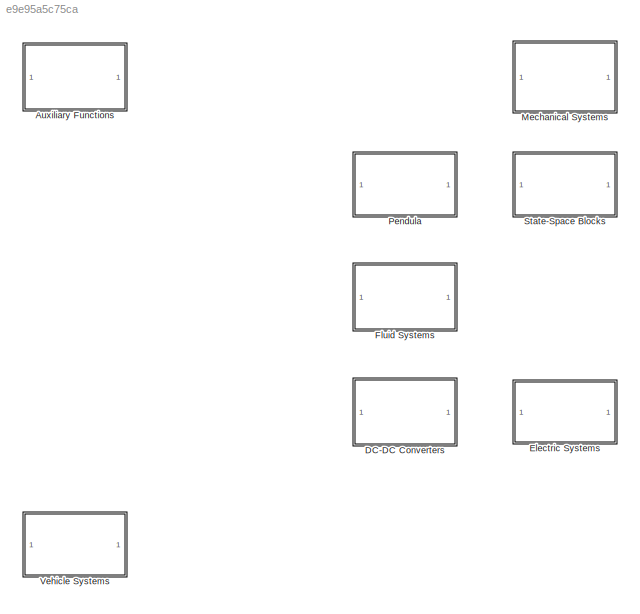
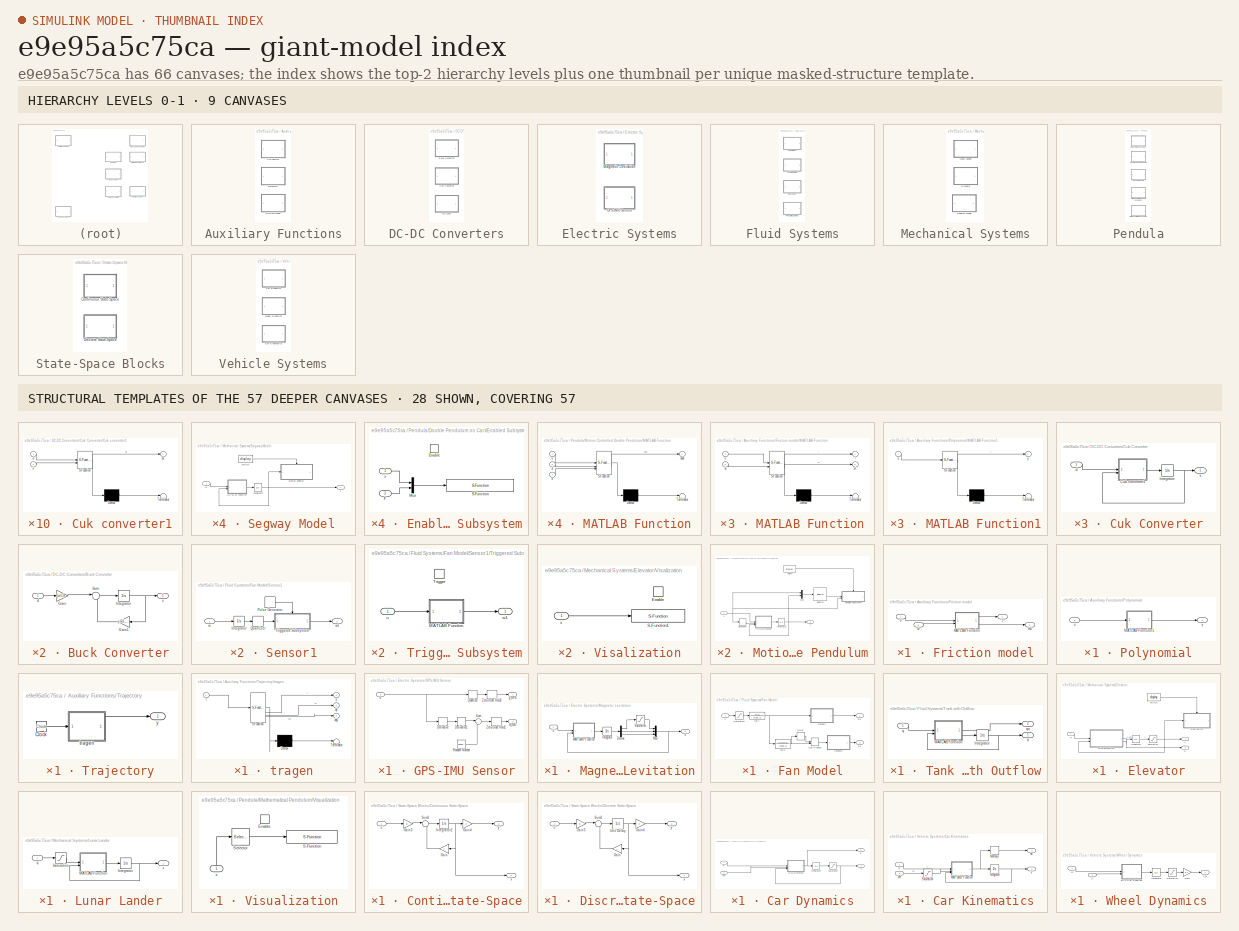
[diagram: thumbnail index - top-2 hierarchy levels (9 canvases) + 28 structural-template representatives of the remaining 57 canvases]
MODEL slx_e9e95a5c75ca
KIND library
CONFIG AbsTol = auto
CONFIG EnableMultiTasking = off
CONFIG FixedStep = auto
CONFIG MaxStep = auto
CONFIG MinStep = auto
CONFIG RelTol = 1e-3
CONFIG SampleTimeConstraint = Unconstrained
CONFIG SolverName = VariableStepAuto
CONFIG StartTime = 0.0
CONFIG StopTime = 10.0
BLOCK [SubSystem] Auxiliary Functions
BLOCK [SubSystem] Auxiliary Functions/Friction model
  LibrarySourceBlock = mci_models/Engine
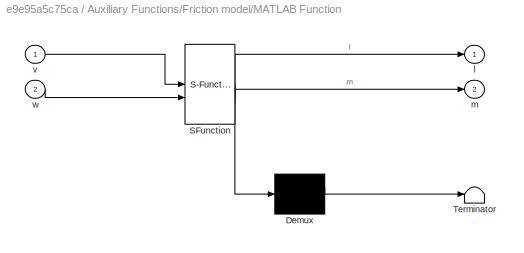
BLOCK [SubSystem] Auxiliary Functions/Friction model/MATLAB Function
  ErrorFcn = Stateflow.Translate.translate
  PermitHierarchicalResolution = ExplicitOnly
  SFBlockType = MATLAB Function
  TreatAsAtomicUnit = on
BLOCK [Demux] Auxiliary Functions/Friction model/MATLAB Function/ Demux 
  Outputs = 1
BLOCK [S-Function] Auxiliary Functions/Friction model/MATLAB Function/ SFunction 
  EnableBusSupport = off
  FunctionName = sf_sfun
  Parameters = p
  PortCounts = [2 3]
  SFcnIsStateOwnerBlock = off
  SFunctionDeploymentMode = off
  Tag = Stateflow S-Function 17
BLOCK [Terminator] Auxiliary Functions/Friction model/MATLAB Function/ Terminator 
BLOCK [Outport] Auxiliary Functions/Friction model/MATLAB Function/l
  VectorParamsAs1DForOutWhenUnconnected = off
BLOCK [Outport] Auxiliary Functions/Friction model/MATLAB Function/m
  Port = 2
  VectorParamsAs1DForOutWhenUnconnected = off
BLOCK [Inport] Auxiliary Functions/Friction model/MATLAB Function/v
BLOCK [Inport] Auxiliary Functions/Friction model/MATLAB Function/w
  Port = 2
BLOCK [Outport] Auxiliary Functions/Friction model/l
  VectorParamsAs1DForOutWhenUnconnected = off
BLOCK [Outport] Auxiliary Functions/Friction model/mu
  Port = 2
  VectorParamsAs1DForOutWhenUnconnected = off
BLOCK [Inport] Auxiliary Functions/Friction model/v
BLOCK [Inport] Auxiliary Functions/Friction model/w
  Port = 2
BLOCK [SubSystem] Auxiliary Functions/Polynomial
BLOCK [SubSystem] Auxiliary Functions/Polynomial/MATLAB Function1
  ErrorFcn = Stateflow.Translate.translate
  PermitHierarchicalResolution = ExplicitOnly
  SFBlockType = MATLAB Function
  TreatAsAtomicUnit = on
BLOCK [Demux] Auxiliary Functions/Polynomial/MATLAB Function1/ Demux 
  Outputs = 1
BLOCK [S-Function] Auxiliary Functions/Polynomial/MATLAB Function1/ SFunction 
  EnableBusSupport = off
  FunctionName = sf_sfun
  Parameters = p
  PortCounts = [1 2]
  SFcnIsStateOwnerBlock = off
  SFunctionDeploymentMode = off
  Tag = Stateflow S-Function 6
BLOCK [Terminator] Auxiliary Functions/Polynomial/MATLAB Function1/ Terminator 
BLOCK [Inport] Auxiliary Functions/Polynomial/MATLAB Function1/u
BLOCK [Outport] Auxiliary Functions/Polynomial/MATLAB Function1/y
  VectorParamsAs1DForOutWhenUnconnected = off
BLOCK [Inport] Auxiliary Functions/Polynomial/u
BLOCK [Outport] Auxiliary Functions/Polynomial/y
  VectorParamsAs1DForOutWhenUnconnected = off
BLOCK [SubSystem] Auxiliary Functions/Trajectory
  LibrarySourceBlock = mci_models/Polynomial
BLOCK [Clock] Auxiliary Functions/Trajectory/Clock
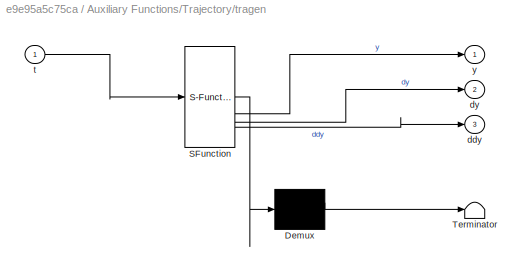
BLOCK [SubSystem] Auxiliary Functions/Trajectory/tragen
  ErrorFcn = Stateflow.Translate.translate
  PermitHierarchicalResolution = ExplicitOnly
  SFBlockType = MATLAB Function
  TreatAsAtomicUnit = on
BLOCK [Demux] Auxiliary Functions/Trajectory/tragen/ Demux 
  Outputs = 1
BLOCK [S-Function] Auxiliary Functions/Trajectory/tragen/ SFunction 
  EnableBusSupport = off
  FunctionName = sf_sfun
  Parameters = p
  PortCounts = [1 4]
  SFcnIsStateOwnerBlock = off
  SFunctionDeploymentMode = off
  Tag = Stateflow S-Function 19
BLOCK [Terminator] Auxiliary Functions/Trajectory/tragen/ Terminator 
BLOCK [Outport] Auxiliary Functions/Trajectory/tragen/ddy
  Port = 3
BLOCK [Outport] Auxiliary Functions/Trajectory/tragen/dy
  Port = 2
BLOCK [Inport] Auxiliary Functions/Trajectory/tragen/t
BLOCK [Outport] Auxiliary Functions/Trajectory/tragen/y
  VectorParamsAs1DForOutWhenUnconnected = off
BLOCK [Outport] Auxiliary Functions/Trajectory/y
  VectorParamsAs1DForOutWhenUnconnected = off
BLOCK [SubSystem] DC-DC Converters
BLOCK [SubSystem] DC-DC Converters/Buck Converter
  LibrarySourceBlock = mci_models/Cuk Converter
BLOCK [Gain] DC-DC Converters/Buck Converter/Gain
  Gain = [ui/L;0]
  Multiplication = Matrix(K*u)
BLOCK [Gain] DC-DC Converters/Buck Converter/Gain1
  Gain = [-R/L -1/L;1/C -G/C]
  Multiplication = Matrix(K*u)
BLOCK [Integrator] DC-DC Converters/Buck Converter/Integrator
  InitialCondition = x0
BLOCK [Sum] DC-DC Converters/Buck Converter/Sum
  Inputs = |++
BLOCK [Inport] DC-DC Converters/Buck Converter/d
BLOCK [Outport] DC-DC Converters/Buck Converter/x
  VectorParamsAs1DForOutWhenUnconnected = off
BLOCK [SubSystem] DC-DC Converters/Cuk Converter
BLOCK [SubSystem] DC-DC Converters/Cuk Converter/Cuk converter1
  ErrorFcn = Stateflow.Translate.translate
  PermitHierarchicalResolution = ExplicitOnly
  SFBlockType = MATLAB Function
  TreatAsAtomicUnit = on
BLOCK [Demux] DC-DC Converters/Cuk Converter/Cuk converter1/ Demux 
  Outputs = 1
BLOCK [S-Function] DC-DC Converters/Cuk Converter/Cuk converter1/ SFunction 
  EnableBusSupport = off
  FunctionName = sf_sfun
  Parameters = p
  PortCounts = [2 2]
  SFcnIsStateOwnerBlock = off
  SFunctionDeploymentMode = off
  Tag = Stateflow S-Function 4
BLOCK [Terminator] DC-DC Converters/Cuk Converter/Cuk converter1/ Terminator 
BLOCK [Inport] DC-DC Converters/Cuk Converter/Cuk converter1/d
BLOCK [Outport] DC-DC Converters/Cuk Converter/Cuk converter1/dx
  VectorParamsAs1DForOutWhenUnconnected = off
BLOCK [Inport] DC-DC Converters/Cuk Converter/Cuk converter1/x
  Port = 2
BLOCK [Integrator] DC-DC Converters/Cuk Converter/Integrator
  InitialCondition = x0
BLOCK [Inport] DC-DC Converters/Cuk Converter/d
BLOCK [Outport] DC-DC Converters/Cuk Converter/x
  VectorParamsAs1DForOutWhenUnconnected = off
BLOCK [SubSystem] DC-DC Converters/RL-Load
  LibrarySourceBlock = mci_models/Cuk Converter
BLOCK [Gain] DC-DC Converters/RL-Load/Gain
  Gain = ui/L
BLOCK [Gain] DC-DC Converters/RL-Load/Gain1
  Gain = -R/L
BLOCK [Integrator] DC-DC Converters/RL-Load/Integrator
  InitialCondition = x0
BLOCK [Sum] DC-DC Converters/RL-Load/Sum
  Inputs = |++
BLOCK [Inport] DC-DC Converters/RL-Load/d
BLOCK [Outport] DC-DC Converters/RL-Load/u
  VectorParamsAs1DForOutWhenUnconnected = off
BLOCK [SubSystem] Electric Systems
BLOCK [SubSystem] Electric Systems/GPS-IMU Sensor
BLOCK [Derivative] Electric Systems/GPS-IMU Sensor/Derivative
BLOCK [Derivative] Electric Systems/GPS-IMU Sensor/Derivative1
BLOCK [Quantizer] Electric Systems/GPS-IMU Sensor/Quantizer
  QuantizationInterval = D
BLOCK [RandomNumber] Electric Systems/GPS-IMU Sensor/Random Number
  Mean = a0
  SampleTime = T
  Seed = rand()
  Variance = var_IMU
BLOCK [Sum] Electric Systems/GPS-IMU Sensor/Sum
  Inputs = |++
BLOCK [ZeroOrderHold] Electric Systems/GPS-IMU Sensor/Zero-Order Hold1
  SampleTime = T
BLOCK [ZeroOrderHold] Electric Systems/GPS-IMU Sensor/Zero-Order Hold2
  SampleTime = T
BLOCK [Outport] Electric Systems/GPS-IMU Sensor/a_IMU
  Port = 2
  VectorParamsAs1DForOutWhenUnconnected = off
BLOCK [Inport] Electric Systems/GPS-IMU Sensor/u
BLOCK [Outport] Electric Systems/GPS-IMU Sensor/y_GPS
  VectorParamsAs1DForOutWhenUnconnected = off
BLOCK [SubSystem] Electric Systems/Magnetic Levitation
BLOCK [Demux] Electric Systems/Magnetic Levitation/Demux
  Outputs = 3
BLOCK [Integrator] Electric Systems/Magnetic Levitation/Integrator
  InitialCondition = x0
BLOCK [SubSystem] Electric Systems/Magnetic Levitation/MATLAB Function
  ErrorFcn = Stateflow.Translate.translate
  PermitHierarchicalResolution = ExplicitOnly
  SFBlockType = MATLAB Function
  TreatAsAtomicUnit = on
BLOCK [Demux] Electric Systems/Magnetic Levitation/MATLAB Function/ Demux 
  Outputs = 1
BLOCK [S-Function] Electric Systems/Magnetic Levitation/MATLAB Function/ SFunction 
  EnableBusSupport = off
  FunctionName = sf_sfun
  Parameters = p
  PortCounts = [2 2]
  SFcnIsStateOwnerBlock = off
  SFunctionDeploymentMode = off
  Tag = Stateflow S-Function 14
BLOCK [Terminator] Electric Systems/Magnetic Levitation/MATLAB Function/ Terminator 
BLOCK [Inport] Electric Systems/Magnetic Levitation/MATLAB Function/u
BLOCK [Inport] Electric Systems/Magnetic Levitation/MATLAB Function/x
  Port = 2
BLOCK [Outport] Electric Systems/Magnetic Levitation/MATLAB Function/xdot
  VectorParamsAs1DForOutWhenUnconnected = off
BLOCK [Mux] Electric Systems/Magnetic Levitation/Mux
  DisplayOption = bar
  Inputs = 3
BLOCK [Saturate] Electric Systems/Magnetic Levitation/Saturation
  LowerLimit = 0
  UpperLimit = 2*p.y0
BLOCK [Inport] Electric Systems/Magnetic Levitation/u
BLOCK [Outport] Electric Systems/Magnetic Levitation/x
  VectorParamsAs1DForOutWhenUnconnected = off
BLOCK [SubSystem] Fluid Systems
BLOCK [SubSystem] Fluid Systems/Bioreactor
BLOCK [Integrator] Fluid Systems/Bioreactor/Integrator
  InitialCondition = x0
BLOCK [SubSystem] Fluid Systems/Bioreactor/MATLAB Function
  ErrorFcn = Stateflow.Translate.translate
  PermitHierarchicalResolution = ExplicitOnly
  SFBlockType = MATLAB Function
  TreatAsAtomicUnit = on
BLOCK [Demux] Fluid Systems/Bioreactor/MATLAB Function/ Demux 
  Outputs = 1
BLOCK [S-Function] Fluid Systems/Bioreactor/MATLAB Function/ SFunction 
  EnableBusSupport = off
  FunctionName = sf_sfun
  Parameters = p
  PortCounts = [2 2]
  SFcnIsStateOwnerBlock = off
  SFunctionDeploymentMode = off
  Tag = Stateflow S-Function 11
BLOCK [Terminator] Fluid Systems/Bioreactor/MATLAB Function/ Terminator 
BLOCK [Inport] Fluid Systems/Bioreactor/MATLAB Function/u
BLOCK [Inport] Fluid Systems/Bioreactor/MATLAB Function/x
  Port = 2
BLOCK [Outport] Fluid Systems/Bioreactor/MATLAB Function/xdot
  VectorParamsAs1DForOutWhenUnconnected = off
BLOCK [Inport] Fluid Systems/Bioreactor/u
BLOCK [Outport] Fluid Systems/Bioreactor/x
  VectorParamsAs1DForOutWhenUnconnected = off
BLOCK [SubSystem] Fluid Systems/Fan Model
  LibrarySourceBlock = mci_models/Segway Model
BLOCK [DotProduct] Fluid Systems/Fan Model/Dot Product
  OutDataTypeStr = Inherit: Inherit via internal rule
BLOCK [Relay] Fluid Systems/Fan Model/Relay
  OffSwitchValue = w_off
  OnSwitchValue = w_on
BLOCK [Saturate] Fluid Systems/Fan Model/Saturation
  LowerLimit = 0
  UpperLimit = inf
BLOCK [SubSystem] Fluid Systems/Fan Model/Sensor1
  Commented = through
BLOCK [Integrator] Fluid Systems/Fan Model/Sensor1/Integrator
BLOCK [DiscretePulseGenerator] Fluid Systems/Fan Model/Sensor1/Pulse Generator
  Period = T
  PulseType = Time based
  PulseWidth = 5
BLOCK [Quantizer] Fluid Systems/Fan Model/Sensor1/Quantizer
  QuantizationInterval = pi/2
BLOCK [SubSystem] Fluid Systems/Fan Model/Sensor1/Triggered Subsystem
  TreatAsAtomicUnit = on
BLOCK [SubSystem] Fluid Systems/Fan Model/Sensor1/Triggered Subsystem/MATLAB Function
  ErrorFcn = Stateflow.Translate.translate
  LibrarySourceBlock = simulink/User-Defined\nFunctions/MATLAB Function
  PermitHierarchicalResolution = ExplicitOnly
  SFBlockType = MATLAB Function
  TreatAsAtomicUnit = on
BLOCK [Demux] Fluid Systems/Fan Model/Sensor1/Triggered Subsystem/MATLAB Function/ Demux 
  Outputs = 1
BLOCK [S-Function] Fluid Systems/Fan Model/Sensor1/Triggered Subsystem/MATLAB Function/ SFunction 
  EnableBusSupport = off
  FunctionName = sf_sfun
  Parameters = T
  PortCounts = [1 2]
  SFcnIsStateOwnerBlock = off
  SFunctionDeploymentMode = off
  Tag = Stateflow S-Function 21
BLOCK [Terminator] Fluid Systems/Fan Model/Sensor1/Triggered Subsystem/MATLAB Function/ Terminator 
BLOCK [Inport] Fluid Systems/Fan Model/Sensor1/Triggered Subsystem/MATLAB Function/phi
BLOCK [Outport] Fluid Systems/Fan Model/Sensor1/Triggered Subsystem/MATLAB Function/w
BLOCK [TriggerPort] Fluid Systems/Fan Model/Sensor1/Triggered Subsystem/Trigger
  StatesWhenEnabling = held
  VariantControl = (inherit)
BLOCK [Inport] Fluid Systems/Fan Model/Sensor1/Triggered Subsystem/u
BLOCK [Outport] Fluid Systems/Fan Model/Sensor1/Triggered Subsystem/w1
BLOCK [Inport] Fluid Systems/Fan Model/Sensor1/w
BLOCK [Outport] Fluid Systems/Fan Model/Sensor1/w1
BLOCK [SubSystem] Fluid Systems/Fan Model/Sensor2
  Commented = through
BLOCK [Integrator] Fluid Systems/Fan Model/Sensor2/Integrator
BLOCK [DiscretePulseGenerator] Fluid Systems/Fan Model/Sensor2/Pulse Generator
  Period = T
  PulseType = Time based
  PulseWidth = 5
BLOCK [Quantizer] Fluid Systems/Fan Model/Sensor2/Quantizer
  QuantizationInterval = pi/2
BLOCK [SubSystem] Fluid Systems/Fan Model/Sensor2/Triggered Subsystem
  TreatAsAtomicUnit = on
BLOCK [SubSystem] Fluid Systems/Fan Model/Sensor2/Triggered Subsystem/MATLAB Function
  ErrorFcn = Stateflow.Translate.translate
  LibrarySourceBlock = simulink/User-Defined\nFunctions/MATLAB Function
  PermitHierarchicalResolution = ExplicitOnly
  SFBlockType = MATLAB Function
  TreatAsAtomicUnit = on
BLOCK [Demux] Fluid Systems/Fan Model/Sensor2/Triggered Subsystem/MATLAB Function/ Demux 
  Outputs = 1
BLOCK [S-Function] Fluid Systems/Fan Model/Sensor2/Triggered Subsystem/MATLAB Function/ SFunction 
  EnableBusSupport = off
  FunctionName = sf_sfun
  Parameters = T
  PortCounts = [1 2]
  SFcnIsStateOwnerBlock = off
  SFunctionDeploymentMode = off
  Tag = Stateflow S-Function 22
BLOCK [Terminator] Fluid Systems/Fan Model/Sensor2/Triggered Subsystem/MATLAB Function/ Terminator 
BLOCK [Inport] Fluid Systems/Fan Model/Sensor2/Triggered Subsystem/MATLAB Function/phi
BLOCK [Outport] Fluid Systems/Fan Model/Sensor2/Triggered Subsystem/MATLAB Function/w
BLOCK [TriggerPort] Fluid Systems/Fan Model/Sensor2/Triggered Subsystem/Trigger
  StatesWhenEnabling = held
  VariantControl = (inherit)
BLOCK [Inport] Fluid Systems/Fan Model/Sensor2/Triggered Subsystem/u
BLOCK [Outport] Fluid Systems/Fan Model/Sensor2/Triggered Subsystem/w1
BLOCK [Inport] Fluid Systems/Fan Model/Sensor2/w
BLOCK [Outport] Fluid Systems/Fan Model/Sensor2/w2
BLOCK [TransferFcn] Fluid Systems/Fan Model/fan 1
  Denominator = [tau1 1]
  Numerator = [K1]
BLOCK [TransferFcn] Fluid Systems/Fan Model/fan 2
  Denominator = [tau2 1]
  Numerator = [K2/K1]
BLOCK [Inport] Fluid Systems/Fan Model/u
BLOCK [Outport] Fluid Systems/Fan Model/w1
  VectorParamsAs1DForOutWhenUnconnected = off
BLOCK [Outport] Fluid Systems/Fan Model/w2
  Port = 2
  VectorParamsAs1DForOutWhenUnconnected = off
BLOCK [SubSystem] Fluid Systems/Pneumatic Cylinder
BLOCK [Integrator] Fluid Systems/Pneumatic Cylinder/Integrator
  InitialCondition = x0
BLOCK [SubSystem] Fluid Systems/Pneumatic Cylinder/MATLAB Function
  ErrorFcn = Stateflow.Translate.translate
  PermitHierarchicalResolution = ExplicitOnly
  SFBlockType = MATLAB Function
  TreatAsAtomicUnit = on
BLOCK [Demux] Fluid Systems/Pneumatic Cylinder/MATLAB Function/ Demux 
  Outputs = 1
BLOCK [S-Function] Fluid Systems/Pneumatic Cylinder/MATLAB Function/ SFunction 
  EnableBusSupport = off
  FunctionName = sf_sfun
  Parameters = p
  PortCounts = [2 2]
  SFcnIsStateOwnerBlock = off
  SFunctionDeploymentMode = off
  Tag = Stateflow S-Function 1
BLOCK [Terminator] Fluid Systems/Pneumatic Cylinder/MATLAB Function/ Terminator 
BLOCK [Outport] Fluid Systems/Pneumatic Cylinder/MATLAB Function/dx
  VectorParamsAs1DForOutWhenUnconnected = off
BLOCK [Inport] Fluid Systems/Pneumatic Cylinder/MATLAB Function/u
BLOCK [Inport] Fluid Systems/Pneumatic Cylinder/MATLAB Function/x
  Port = 2
BLOCK [Inport] Fluid Systems/Pneumatic Cylinder/p
BLOCK [Outport] Fluid Systems/Pneumatic Cylinder/x
  VectorParamsAs1DForOutWhenUnconnected = off
BLOCK [SubSystem] Fluid Systems/Tank with Outflow
BLOCK [Integrator] Fluid Systems/Tank with Outflow/Integrator
  InitialCondition = h0
BLOCK [SubSystem] Fluid Systems/Tank with Outflow/MATLAB Function
  ErrorFcn = Stateflow.Translate.translate
  PermitHierarchicalResolution = ExplicitOnly
  SFBlockType = MATLAB Function
  TreatAsAtomicUnit = on
BLOCK [Demux] Fluid Systems/Tank with Outflow/MATLAB Function/ Demux 
  Outputs = 1
BLOCK [S-Function] Fluid Systems/Tank with Outflow/MATLAB Function/ SFunction 
  EnableBusSupport = off
  FunctionName = sf_sfun
  Parameters = p
  PortCounts = [2 3]
  SFcnIsStateOwnerBlock = off
  SFunctionDeploymentMode = off
  Tag = Stateflow S-Function 8
BLOCK [Terminator] Fluid Systems/Tank with Outflow/MATLAB Function/ Terminator 
BLOCK [Inport] Fluid Systems/Tank with Outflow/MATLAB Function/h
  Port = 2
BLOCK [Outport] Fluid Systems/Tank with Outflow/MATLAB Function/hdot
  Port = 2
  VectorParamsAs1DForOutWhenUnconnected = off
BLOCK [Inport] Fluid Systems/Tank with Outflow/MATLAB Function/qi
BLOCK [Outport] Fluid Systems/Tank with Outflow/MATLAB Function/qo
  VectorParamsAs1DForOutWhenUnconnected = off
BLOCK [Outport] Fluid Systems/Tank with Outflow/h
  VectorParamsAs1DForOutWhenUnconnected = off
BLOCK [Inport] Fluid Systems/Tank with Outflow/q
BLOCK [Outport] Fluid Systems/Tank with Outflow/qo
  Port = 2
  VectorParamsAs1DForOutWhenUnconnected = off
BLOCK [SubSystem] Mechanical Systems
BLOCK [SubSystem] Mechanical Systems/Elevator
  LibrarySourceBlock = mci_models/Pendulum on Cart
  MinAlgLoopOccurrences = on
BLOCK [Integrator] Mechanical Systems/Elevator/Integrator
  InitialCondition = x0
BLOCK [Inport] Mechanical Systems/Elevator/M
BLOCK [SubSystem] Mechanical Systems/Elevator/MATLAB Function
  ErrorFcn = Stateflow.Translate.translate
  PermitHierarchicalResolution = ExplicitOnly
  SFBlockType = MATLAB Function
  TreatAsAtomicUnit = on
BLOCK [Demux] Mechanical Systems/Elevator/MATLAB Function/ Demux 
  Outputs = 1
BLOCK [S-Function] Mechanical Systems/Elevator/MATLAB Function/ SFunction 
  EnableBusSupport = off
  FunctionName = sf_sfun
  Parameters = p
  PortCounts = [2 3]
  SFcnIsStateOwnerBlock = off
  SFunctionDeploymentMode = off
  Tag = Stateflow S-Function 15
BLOCK [Terminator] Mechanical Systems/Elevator/MATLAB Function/ Terminator 
BLOCK [Inport] Mechanical Systems/Elevator/MATLAB Function/M
BLOCK [Outport] Mechanical Systems/Elevator/MATLAB Function/e
  Port = 2
BLOCK [Inport] Mechanical Systems/Elevator/MATLAB Function/x
  Port = 2
BLOCK [Outport] Mechanical Systems/Elevator/MATLAB Function/xdot
  VectorParamsAs1DForOutWhenUnconnected = off
BLOCK [Saturate] Mechanical Systems/Elevator/Saturation
  LowerLimit = [-inf;1;-inf;-inf]
  UpperLimit = [inf;inf;inf;inf]
BLOCK [SubSystem] Mechanical Systems/Elevator/Visalization
  TreatAsAtomicUnit = on
BLOCK [EnablePort] Mechanical Systems/Elevator/Visalization/Enable
BLOCK [S-Function] Mechanical Systems/Elevator/Visalization/S-Function1
  EnableBusSupport = off
  FunctionName = elevator_display
  Parameters = display
  SFcnIsStateOwnerBlock = off
  SFunctionDeploymentMode = off
BLOCK [Inport] Mechanical Systems/Elevator/Visalization/x
BLOCK [Outport] Mechanical Systems/Elevator/e
  Port = 2
  VectorParamsAs1DForOutWhenUnconnected = off
BLOCK [Constant] Mechanical Systems/Elevator/switch
  Value = display
BLOCK [Outport] Mechanical Systems/Elevator/x
  VectorParamsAs1DForOutWhenUnconnected = off
BLOCK [SubSystem] Mechanical Systems/Lunar Lander
BLOCK [Integrator] Mechanical Systems/Lunar Lander/Integrator
  InitialCondition = x0
BLOCK [SubSystem] Mechanical Systems/Lunar Lander/MATLAB Function
  ErrorFcn = Stateflow.Translate.translate
  PermitHierarchicalResolution = ExplicitOnly
  SFBlockType = MATLAB Function
  TreatAsAtomicUnit = on
BLOCK [Demux] Mechanical Systems/Lunar Lander/MATLAB Function/ Demux 
  Outputs = 1
BLOCK [S-Function] Mechanical Systems/Lunar Lander/MATLAB Function/ SFunction 
  EnableBusSupport = off
  FunctionName = sf_sfun
  Parameters = p
  PortCounts = [2 2]
  SFcnIsStateOwnerBlock = off
  SFunctionDeploymentMode = off
  Tag = Stateflow S-Function 10
BLOCK [Terminator] Mechanical Systems/Lunar Lander/MATLAB Function/ Terminator 
BLOCK [Inport] Mechanical Systems/Lunar Lander/MATLAB Function/u
BLOCK [Inport] Mechanical Systems/Lunar Lander/MATLAB Function/x
  Port = 2
BLOCK [Outport] Mechanical Systems/Lunar Lander/MATLAB Function/xdot
  VectorParamsAs1DForOutWhenUnconnected = off
BLOCK [Saturate] Mechanical Systems/Lunar Lander/Saturation
  LowerLimit = 0
  UpperLimit = inf
BLOCK [Inport] Mechanical Systems/Lunar Lander/q
BLOCK [Outport] Mechanical Systems/Lunar Lander/x
  VectorParamsAs1DForOutWhenUnconnected = off
BLOCK [SubSystem] Mechanical Systems/Segway Model
BLOCK [Integrator] Mechanical Systems/Segway Model/Integrator
  InitialCondition = x0
BLOCK [Inport] Mechanical Systems/Segway Model/M
BLOCK [SubSystem] Mechanical Systems/Segway Model/MATLAB Function
  ErrorFcn = Stateflow.Translate.translate
  PermitHierarchicalResolution = ExplicitOnly
  SFBlockType = MATLAB Function
  TreatAsAtomicUnit = on
BLOCK [Demux] Mechanical Systems/Segway Model/MATLAB Function/ Demux 
  Outputs = 1
BLOCK [S-Function] Mechanical Systems/Segway Model/MATLAB Function/ SFunction 
  EnableBusSupport = off
  FunctionName = sf_sfun
  Parameters = p
  PortCounts = [2 2]
  SFcnIsStateOwnerBlock = off
  SFunctionDeploymentMode = off
  Tag = Stateflow S-Function 9
BLOCK [Terminator] Mechanical Systems/Segway Model/MATLAB Function/ Terminator 
BLOCK [Outport] Mechanical Systems/Segway Model/MATLAB Function/dx
  VectorParamsAs1DForOutWhenUnconnected = off
BLOCK [Inport] Mechanical Systems/Segway Model/MATLAB Function/u
BLOCK [Inport] Mechanical Systems/Segway Model/MATLAB Function/x
  Port = 2
BLOCK [SubSystem] Mechanical Systems/Segway Model/display segway
BLOCK [EnablePort] Mechanical Systems/Segway Model/display segway/Enable
BLOCK [S-Function] Mechanical Systems/Segway Model/display segway/S-Function1
  EnableBusSupport = off
  FunctionName = segway_display
  Parameters = display
  SFcnIsStateOwnerBlock = off
  SFunctionDeploymentMode = off
BLOCK [Inport] Mechanical Systems/Segway Model/display segway/x
BLOCK [Constant] Mechanical Systems/Segway Model/switch
  Value = display
BLOCK [Outport] Mechanical Systems/Segway Model/x
  VectorParamsAs1DForOutWhenUnconnected = off
BLOCK [SubSystem] Pendula
BLOCK [SubSystem] Pendula/Double Pendulum on Cart
BLOCK [SubSystem] Pendula/Double Pendulum on Cart/Enabled Subsystem
  TreatAsAtomicUnit = on
BLOCK [EnablePort] Pendula/Double Pendulum on Cart/Enabled Subsystem/Enable
BLOCK [Inport] Pendula/Double Pendulum on Cart/Enabled Subsystem/F
  Port = 2
BLOCK [Mux] Pendula/Double Pendulum on Cart/Enabled Subsystem/Mux
  DisplayOption = bar
  Inputs = 2
BLOCK [S-Function] Pendula/Double Pendulum on Cart/Enabled Subsystem/S-Function
  EnableBusSupport = off
  FunctionName = double_pendulum_display
  Parameters = display
  SFcnIsStateOwnerBlock = off
  SFunctionDeploymentMode = off
BLOCK [Inport] Pendula/Double Pendulum on Cart/Enabled Subsystem/x
BLOCK [Inport] Pendula/Double Pendulum on Cart/F
BLOCK [Integrator] Pendula/Double Pendulum on Cart/Integrator
  InitialCondition = x0
BLOCK [SubSystem] Pendula/Double Pendulum on Cart/MATLAB Function
  ErrorFcn = Stateflow.Translate.translate
  PermitHierarchicalResolution = ExplicitOnly
  SFBlockType = MATLAB Function
  TreatAsAtomicUnit = on
BLOCK [Demux] Pendula/Double Pendulum on Cart/MATLAB Function/ Demux 
  Outputs = 1
BLOCK [S-Function] Pendula/Double Pendulum on Cart/MATLAB Function/ SFunction 
  EnableBusSupport = off
  FunctionName = sf_sfun
  Parameters = p
  PortCounts = [2 2]
  SFcnIsStateOwnerBlock = off
  SFunctionDeploymentMode = off
  Tag = Stateflow S-Function 12
BLOCK [Terminator] Pendula/Double Pendulum on Cart/MATLAB Function/ Terminator 
BLOCK [Inport] Pendula/Double Pendulum on Cart/MATLAB Function/u
BLOCK [Inport] Pendula/Double Pendulum on Cart/MATLAB Function/x
  Port = 2
BLOCK [Outport] Pendula/Double Pendulum on Cart/MATLAB Function/xdot
  VectorParamsAs1DForOutWhenUnconnected = off
BLOCK [Constant] Pendula/Double Pendulum on Cart/switch
  Value = display
BLOCK [Outport] Pendula/Double Pendulum on Cart/x
  VectorParamsAs1DForOutWhenUnconnected = off
BLOCK [SubSystem] Pendula/Mathematical Pendulum
BLOCK [Integrator] Pendula/Mathematical Pendulum/Integrator
  InitialCondition = x0
BLOCK [Inport] Pendula/Mathematical Pendulum/M
BLOCK [SubSystem] Pendula/Mathematical Pendulum/MATLAB Function
  ErrorFcn = Stateflow.Translate.translate
  PermitHierarchicalResolution = ExplicitOnly
  SFBlockType = MATLAB Function
  TreatAsAtomicUnit = on
BLOCK [Demux] Pendula/Mathematical Pendulum/MATLAB Function/ Demux 
  Outputs = 1
BLOCK [S-Function] Pendula/Mathematical Pendulum/MATLAB Function/ SFunction 
  EnableBusSupport = off
  FunctionName = sf_sfun
  Parameters = p
  PortCounts = [2 2]
  SFcnIsStateOwnerBlock = off
  SFunctionDeploymentMode = off
  Tag = Stateflow S-Function 3
BLOCK [Terminator] Pendula/Mathematical Pendulum/MATLAB Function/ Terminator 
BLOCK [Inport] Pendula/Mathematical Pendulum/MATLAB Function/u
BLOCK [Inport] Pendula/Mathematical Pendulum/MATLAB Function/x
  Port = 2
BLOCK [Outport] Pendula/Mathematical Pendulum/MATLAB Function/xdot
  VectorParamsAs1DForOutWhenUnconnected = off
BLOCK [SubSystem] Pendula/Mathematical Pendulum/Visualization
BLOCK [EnablePort] Pendula/Mathematical Pendulum/Visualization/Enable
BLOCK [S-Function] Pendula/Mathematical Pendulum/Visualization/S-Function
  EnableBusSupport = off
  FunctionName = pendulum_display
  Parameters = display
  SFcnIsStateOwnerBlock = off
  SFunctionDeploymentMode = off
BLOCK [Selector] Pendula/Mathematical Pendulum/Visualization/Selector
  IndexOptions = Index vector (dialog)
  Indices = [1]
  InputPortWidth = 2
  OutputSizes = 1
BLOCK [Inport] Pendula/Mathematical Pendulum/Visualization/x
  NameLocation = right
BLOCK [Constant] Pendula/Mathematical Pendulum/switch
  Value = display
BLOCK [Outport] Pendula/Mathematical Pendulum/x
  VectorParamsAs1DForOutWhenUnconnected = off
BLOCK [SubSystem] Pendula/Motion Controlled Double Pendulum
BLOCK [Derivative] Pendula/Motion Controlled Double Pendulum/Derivative
BLOCK [SubSystem] Pendula/Motion Controlled Double Pendulum/Enabled Subsystem
  TreatAsAtomicUnit = on
BLOCK [EnablePort] Pendula/Motion Controlled Double Pendulum/Enabled Subsystem/Enable
BLOCK [Mux] Pendula/Motion Controlled Double Pendulum/Enabled Subsystem/Mux
  DisplayOption = bar
  Inputs = 2
BLOCK [S-Function] Pendula/Motion Controlled Double Pendulum/Enabled Subsystem/S-Function
  EnableBusSupport = off
  FunctionName = double_pendulum_display
  Parameters = display
  SFcnIsStateOwnerBlock = off
  SFunctionDeploymentMode = off
BLOCK [Inport] Pendula/Motion Controlled Double Pendulum/Enabled Subsystem/u
  Port = 2
BLOCK [Inport] Pendula/Motion Controlled Double Pendulum/Enabled Subsystem/x
BLOCK [Integrator] Pendula/Motion Controlled Double Pendulum/Integrator
  InitialCondition = x0
BLOCK [SubSystem] Pendula/Motion Controlled Double Pendulum/MATLAB Function
  ErrorFcn = Stateflow.Translate.translate
  PermitHierarchicalResolution = ExplicitOnly
  SFBlockType = MATLAB Function
  TreatAsAtomicUnit = on
BLOCK [Demux] Pendula/Motion Controlled Double Pendulum/MATLAB Function/ Demux 
  Outputs = 1
BLOCK [S-Function] Pendula/Motion Controlled Double Pendulum/MATLAB Function/ SFunction 
  EnableBusSupport = off
  FunctionName = sf_sfun
  Parameters = p
  PortCounts = [3 2]
  SFcnIsStateOwnerBlock = off
  SFunctionDeploymentMode = off
  Tag = Stateflow S-Function 13
BLOCK [Terminator] Pendula/Motion Controlled Double Pendulum/MATLAB Function/ Terminator 
BLOCK [Inport] Pendula/Motion Controlled Double Pendulum/MATLAB Function/a
  Port = 2
BLOCK [Inport] Pendula/Motion Controlled Double Pendulum/MATLAB Function/v
BLOCK [Inport] Pendula/Motion Controlled Double Pendulum/MATLAB Function/x
  Port = 3
BLOCK [Outport] Pendula/Motion Controlled Double Pendulum/MATLAB Function/xdot
  VectorParamsAs1DForOutWhenUnconnected = off
BLOCK [Mux] Pendula/Motion Controlled Double Pendulum/Mux
  DisplayOption = bar
  Inputs = 2
BLOCK [Selector] Pendula/Motion Controlled Double Pendulum/Selector
  IndexOptions = Index vector (dialog)
  Indices = [2 3 4 1 5 6]
  InputPortWidth = 6
  OutputSizes = 1
BLOCK [Constant] Pendula/Motion Controlled Double Pendulum/switch
  Value = display
BLOCK [Inport] Pendula/Motion Controlled Double Pendulum/v
BLOCK [Outport] Pendula/Motion Controlled Double Pendulum/x
  VectorParamsAs1DForOutWhenUnconnected = off
BLOCK [SubSystem] Pendula/Motion Controlled Pendulum
  LibrarySourceBlock = mci_models/Pendulum on Cart
  MinAlgLoopOccurrences = on
BLOCK [Derivative] Pendula/Motion Controlled Pendulum/Derivative
BLOCK [Integrator] Pendula/Motion Controlled Pendulum/Integrator
  InitialCondition = x0
BLOCK [SubSystem] Pendula/Motion Controlled Pendulum/MATLAB Function
  ErrorFcn = Stateflow.Translate.translate
  PermitHierarchicalResolution = ExplicitOnly
  SFBlockType = MATLAB Function
  TreatAsAtomicUnit = on
BLOCK [Demux] Pendula/Motion Controlled Pendulum/MATLAB Function/ Demux 
  Outputs = 1
BLOCK [S-Function] Pendula/Motion Controlled Pendulum/MATLAB Function/ SFunction 
  EnableBusSupport = off
  FunctionName = sf_sfun
  Parameters = p
  PortCounts = [3 2]
  SFcnIsStateOwnerBlock = off
  SFunctionDeploymentMode = off
  Tag = Stateflow S-Function 18
BLOCK [Terminator] Pendula/Motion Controlled Pendulum/MATLAB Function/ Terminator 
BLOCK [Inport] Pendula/Motion Controlled Pendulum/MATLAB Function/a
  Port = 2
BLOCK [Inport] Pendula/Motion Controlled Pendulum/MATLAB Function/v
BLOCK [Inport] Pendula/Motion Controlled Pendulum/MATLAB Function/x
  Port = 3
BLOCK [Outport] Pendula/Motion Controlled Pendulum/MATLAB Function/xdot
  VectorParamsAs1DForOutWhenUnconnected = off
BLOCK [Mux] Pendula/Motion Controlled Pendulum/Mux
  DisplayOption = bar
  Inputs = 2
BLOCK [Selector] Pendula/Motion Controlled Pendulum/Selector
  IndexOptions = Index vector (dialog)
  Indices = [2 3 1 4]
  InputPortWidth = 4
  OutputSizes = 1
BLOCK [SubSystem] Pendula/Motion Controlled Pendulum/Visalization
  TreatAsAtomicUnit = on
BLOCK [EnablePort] Pendula/Motion Controlled Pendulum/Visalization/Enable
BLOCK [Mux] Pendula/Motion Controlled Pendulum/Visalization/Mux
  DisplayOption = bar
  Inputs = 2
BLOCK [S-Function] Pendula/Motion Controlled Pendulum/Visalization/S-Function1
  EnableBusSupport = off
  FunctionName = pendulum_cart_display
  Parameters = display
  SFcnIsStateOwnerBlock = off
  SFunctionDeploymentMode = off
BLOCK [Inport] Pendula/Motion Controlled Pendulum/Visalization/u
  Port = 2
BLOCK [Inport] Pendula/Motion Controlled Pendulum/Visalization/x
BLOCK [Constant] Pendula/Motion Controlled Pendulum/switch
  Value = display
BLOCK [Inport] Pendula/Motion Controlled Pendulum/v
BLOCK [Outport] Pendula/Motion Controlled Pendulum/x
  VectorParamsAs1DForOutWhenUnconnected = off
BLOCK [SubSystem] Pendula/Pendulum on Cart
  Description = Simple model for pendulum on force driven slider. The states are x=[y v] where y is the\n(horizontal) position and v the velocity of the slider. As input a force is taken u=F.\n\nFor the slider only its mass and the friction koefficient with the surface needs to be provided.\nFor the pendulum parameters include mass, distance of COG from hinge point, moment of\ninertia around the COG for the pendulum a...<+51ch>
  MinAlgLoopOccurrences = on
BLOCK [Inport] Pendula/Pendulum on Cart/F
BLOCK [Integrator] Pendula/Pendulum on Cart/Integrator
  InitialCondition = x0
BLOCK [SubSystem] Pendula/Pendulum on Cart/MATLAB Function
  ErrorFcn = Stateflow.Translate.translate
  PermitHierarchicalResolution = ExplicitOnly
  SFBlockType = MATLAB Function
  TreatAsAtomicUnit = on
BLOCK [Demux] Pendula/Pendulum on Cart/MATLAB Function/ Demux 
  Outputs = 1
BLOCK [S-Function] Pendula/Pendulum on Cart/MATLAB Function/ SFunction 
  EnableBusSupport = off
  FunctionName = sf_sfun
  Parameters = p
  PortCounts = [2 2]
  SFcnIsStateOwnerBlock = off
  SFunctionDeploymentMode = off
  Tag = Stateflow S-Function 2
BLOCK [Terminator] Pendula/Pendulum on Cart/MATLAB Function/ Terminator 
BLOCK [Inport] Pendula/Pendulum on Cart/MATLAB Function/F
BLOCK [Inport] Pendula/Pendulum on Cart/MATLAB Function/x
  Port = 2
BLOCK [Outport] Pendula/Pendulum on Cart/MATLAB Function/xdot
  VectorParamsAs1DForOutWhenUnconnected = off
BLOCK [SubSystem] Pendula/Pendulum on Cart/Visalization
  TreatAsAtomicUnit = on
BLOCK [EnablePort] Pendula/Pendulum on Cart/Visalization/Enable
BLOCK [Mux] Pendula/Pendulum on Cart/Visalization/Mux
  DisplayOption = bar
  Inputs = 2
BLOCK [S-Function] Pendula/Pendulum on Cart/Visalization/S-Function1
  EnableBusSupport = off
  FunctionName = pendulum_cart_display
  Parameters = display
  SFcnIsStateOwnerBlock = off
  SFunctionDeploymentMode = off
BLOCK [Inport] Pendula/Pendulum on Cart/Visalization/u
  Port = 2
BLOCK [Inport] Pendula/Pendulum on Cart/Visalization/x
BLOCK [Constant] Pendula/Pendulum on Cart/switch
  Value = display
BLOCK [Outport] Pendula/Pendulum on Cart/x
  VectorParamsAs1DForOutWhenUnconnected = off
BLOCK [SubSystem] State-Space Blocks
BLOCK [SubSystem] State-Space Blocks/Continuous State-Space
BLOCK [Gain] State-Space Blocks/Continuous State-Space/Gain
  Gain = A
  Multiplication = Matrix(K*u)
BLOCK [Gain] State-Space Blocks/Continuous State-Space/Gain3
  Gain = B
  Multiplication = Matrix(K*u)
BLOCK [Gain] State-Space Blocks/Continuous State-Space/Gain4
  Gain = C
  Multiplication = Matrix(K*u)
BLOCK [Integrator] State-Space Blocks/Continuous State-Space/Integrator2
  InitialCondition = x0
BLOCK [Sum] State-Space Blocks/Continuous State-Space/Sum2
  Inputs = |++
BLOCK [Inport] State-Space Blocks/Continuous State-Space/u
BLOCK [Outport] State-Space Blocks/Continuous State-Space/x
  Port = 2
  VectorParamsAs1DForOutWhenUnconnected = off
BLOCK [Outport] State-Space Blocks/Continuous State-Space/y
  VectorParamsAs1DForOutWhenUnconnected = off
BLOCK [SubSystem] State-Space Blocks/Discrete State-Space
  LibrarySourceBlock = mci_models/State-Space
BLOCK [Gain] State-Space Blocks/Discrete State-Space/Gain
  Gain = A
  Multiplication = Matrix(K*u)
BLOCK [Gain] State-Space Blocks/Discrete State-Space/Gain3
  Gain = B
  Multiplication = Matrix(K*u)
BLOCK [Gain] State-Space Blocks/Discrete State-Space/Gain4
  Gain = C
  Multiplication = Matrix(K*u)
BLOCK [Sum] State-Space Blocks/Discrete State-Space/Sum2
  Inputs = |++
BLOCK [UnitDelay] State-Space Blocks/Discrete State-Space/Unit Delay
  HasFrameUpgradeWarning = on
  InitialCondition = x0
  SampleTime = T
BLOCK [Inport] State-Space Blocks/Discrete State-Space/u
BLOCK [Outport] State-Space Blocks/Discrete State-Space/x
  Port = 2
  VectorParamsAs1DForOutWhenUnconnected = off
BLOCK [Outport] State-Space Blocks/Discrete State-Space/y
  VectorParamsAs1DForOutWhenUnconnected = off
BLOCK [SubSystem] Vehicle Systems
BLOCK [SubSystem] Vehicle Systems/Car Dynamics
BLOCK [Inport] Vehicle Systems/Car Dynamics/F
  Port = 2
BLOCK [Integrator] Vehicle Systems/Car Dynamics/Integrator
  InitialCondition = x0
BLOCK [SubSystem] Vehicle Systems/Car Dynamics/MATLAB Function
  ErrorFcn = Stateflow.Translate.translate
  PermitHierarchicalResolution = ExplicitOnly
  SFBlockType = MATLAB Function
  TreatAsAtomicUnit = on
BLOCK [Demux] Vehicle Systems/Car Dynamics/MATLAB Function/ Demux 
  Outputs = 1
BLOCK [S-Function] Vehicle Systems/Car Dynamics/MATLAB Function/ SFunction 
  EnableBusSupport = off
  FunctionName = sf_sfun
  Parameters = p
  PortCounts = [3 2]
  SFcnIsStateOwnerBlock = off
  SFunctionDeploymentMode = off
  Tag = Stateflow S-Function 5
BLOCK [Terminator] Vehicle Systems/Car Dynamics/MATLAB Function/ Terminator 
BLOCK [Inport] Vehicle Systems/Car Dynamics/MATLAB Function/F
BLOCK [Outport] Vehicle Systems/Car Dynamics/MATLAB Function/a
  VectorParamsAs1DForOutWhenUnconnected = off
BLOCK [Inport] Vehicle Systems/Car Dynamics/MATLAB Function/phi
  Port = 2
BLOCK [Inport] Vehicle Systems/Car Dynamics/MATLAB Function/v
  Port = 3
BLOCK [Saturate] Vehicle Systems/Car Dynamics/Saturation
  LowerLimit = 0
  UpperLimit = inf
BLOCK [Outport] Vehicle Systems/Car Dynamics/a
  VectorParamsAs1DForOutWhenUnconnected = off
BLOCK [Inport] Vehicle Systems/Car Dynamics/phi
BLOCK [Outport] Vehicle Systems/Car Dynamics/v
  Port = 2
  VectorParamsAs1DForOutWhenUnconnected = off
BLOCK [SubSystem] Vehicle Systems/Car Kinematics
BLOCK [Integrator] Vehicle Systems/Car Kinematics/Integrator
  InitialCondition = x0
BLOCK [SubSystem] Vehicle Systems/Car Kinematics/MATLAB Function
  ErrorFcn = Stateflow.Translate.translate
  PermitHierarchicalResolution = ExplicitOnly
  SFBlockType = MATLAB Function
  TreatAsAtomicUnit = on
BLOCK [Demux] Vehicle Systems/Car Kinematics/MATLAB Function/ Demux 
  Outputs = 1
BLOCK [S-Function] Vehicle Systems/Car Kinematics/MATLAB Function/ SFunction 
  EnableBusSupport = off
  FunctionName = sf_sfun
  Parameters = l
  PortCounts = [3 2]
  SFcnIsStateOwnerBlock = off
  SFunctionDeploymentMode = off
  Tag = Stateflow S-Function 7
BLOCK [Terminator] Vehicle Systems/Car Kinematics/MATLAB Function/ Terminator 
BLOCK [Inport] Vehicle Systems/Car Kinematics/MATLAB Function/phi
  Port = 2
BLOCK [Inport] Vehicle Systems/Car Kinematics/MATLAB Function/v
BLOCK [Inport] Vehicle Systems/Car Kinematics/MATLAB Function/x
  Port = 3
BLOCK [Outport] Vehicle Systems/Car Kinematics/MATLAB Function/xdot
  VectorParamsAs1DForOutWhenUnconnected = off
BLOCK [Memory] Vehicle Systems/Car Kinematics/Memory
BLOCK [Saturate] Vehicle Systems/Car Kinematics/Saturation
  LowerLimit = -phimax
  UpperLimit = phimax
BLOCK [Outport] Vehicle Systems/Car Kinematics/dx
  Port = 2
  VectorParamsAs1DForOutWhenUnconnected = off
BLOCK [Inport] Vehicle Systems/Car Kinematics/phi
  Port = 2
BLOCK [Inport] Vehicle Systems/Car Kinematics/v
BLOCK [Outport] Vehicle Systems/Car Kinematics/x
  VectorParamsAs1DForOutWhenUnconnected = off
BLOCK [SubSystem] Vehicle Systems/Wheel Dynamics
  LibrarySourceBlock = mci_models/Car Dynamics
BLOCK [Inport] Vehicle Systems/Wheel Dynamics/F
  Port = 2
BLOCK [Gain] Vehicle Systems/Wheel Dynamics/Gain
  Gain = p.r
BLOCK [Integrator] Vehicle Systems/Wheel Dynamics/Integrator
  InitialCondition = w0
BLOCK [Inport] Vehicle Systems/Wheel Dynamics/M
BLOCK [SubSystem] Vehicle Systems/Wheel Dynamics/MATLAB Function
  ErrorFcn = Stateflow.Translate.translate
  PermitHierarchicalResolution = ExplicitOnly
  SFBlockType = MATLAB Function
  TreatAsAtomicUnit = on
BLOCK [Demux] Vehicle Systems/Wheel Dynamics/MATLAB Function/ Demux 
  Outputs = 1
BLOCK [S-Function] Vehicle Systems/Wheel Dynamics/MATLAB Function/ SFunction 
  EnableBusSupport = off
  FunctionName = sf_sfun
  Parameters = p
  PortCounts = [2 2]
  SFcnIsStateOwnerBlock = off
  SFunctionDeploymentMode = off
  Tag = Stateflow S-Function 16
BLOCK [Terminator] Vehicle Systems/Wheel Dynamics/MATLAB Function/ Terminator 
BLOCK [Inport] Vehicle Systems/Wheel Dynamics/MATLAB Function/F
  Port = 2
BLOCK [Inport] Vehicle Systems/Wheel Dynamics/MATLAB Function/M
BLOCK [Outport] Vehicle Systems/Wheel Dynamics/MATLAB Function/a
  VectorParamsAs1DForOutWhenUnconnected = off
BLOCK [Saturate] Vehicle Systems/Wheel Dynamics/Saturation
  LowerLimit = 0
  UpperLimit = inf
BLOCK [Outport] Vehicle Systems/Wheel Dynamics/v_w
  VectorParamsAs1DForOutWhenUnconnected = off
LINE Auxiliary Functions/Friction model/MATLAB Function:1 -> Auxiliary Functions/Friction model/l:1
LINE Auxiliary Functions/Friction model/MATLAB Function:2 -> Auxiliary Functions/Friction model/mu:1
LINE Auxiliary Functions/Friction model/v:1 -> Auxiliary Functions/Friction model/MATLAB Function:1
LINE Auxiliary Functions/Friction model/w:1 -> Auxiliary Functions/Friction model/MATLAB Function:2
LINE Auxiliary Functions/Polynomial/MATLAB Function1:1 -> Auxiliary Functions/Polynomial/y:1
LINE Auxiliary Functions/Polynomial/u:1 -> Auxiliary Functions/Polynomial/MATLAB Function1:1
LINE DC-DC Converters/Buck Converter/Gain1:1 -> DC-DC Converters/Buck Converter/Sum:2
LINE DC-DC Converters/Buck Converter/Gain:1 -> DC-DC Converters/Buck Converter/Sum:1
NET DC-DC Converters/Buck Converter/Integrator:1 -> DC-DC Converters/Buck Converter/Gain1:1, DC-DC Converters/Buck Converter/x:1
LINE DC-DC Converters/Buck Converter/Sum:1 -> DC-DC Converters/Buck Converter/Integrator:1
LINE DC-DC Converters/Buck Converter/d:1 -> DC-DC Converters/Buck Converter/Gain:1
LINE DC-DC Converters/Cuk Converter/Cuk converter1:1 -> DC-DC Converters/Cuk Converter/Integrator:1
NET DC-DC Converters/Cuk Converter/Integrator:1 -> DC-DC Converters/Cuk Converter/Cuk converter1:2, DC-DC Converters/Cuk Converter/x:1
LINE DC-DC Converters/Cuk Converter/d:1 -> DC-DC Converters/Cuk Converter/Cuk converter1:1
LINE DC-DC Converters/RL-Load/Gain1:1 -> DC-DC Converters/RL-Load/Sum:2
LINE DC-DC Converters/RL-Load/Gain:1 -> DC-DC Converters/RL-Load/Sum:1
NET DC-DC Converters/RL-Load/Integrator:1 -> DC-DC Converters/RL-Load/Gain1:1, DC-DC Converters/RL-Load/u:1
LINE DC-DC Converters/RL-Load/Sum:1 -> DC-DC Converters/RL-Load/Integrator:1
LINE DC-DC Converters/RL-Load/d:1 -> DC-DC Converters/RL-Load/Gain:1
LINE Electric Systems/GPS-IMU Sensor/Derivative1:1 -> Electric Systems/GPS-IMU Sensor/Sum:1
LINE Electric Systems/GPS-IMU Sensor/Derivative:1 -> Electric Systems/GPS-IMU Sensor/Derivative1:1
LINE Electric Systems/GPS-IMU Sensor/Quantizer:1 -> Electric Systems/GPS-IMU Sensor/Zero-Order Hold2:1
LINE Electric Systems/GPS-IMU Sensor/Random Number:1 -> Electric Systems/GPS-IMU Sensor/Sum:2
LINE Electric Systems/GPS-IMU Sensor/Sum:1 -> Electric Systems/GPS-IMU Sensor/Zero-Order Hold1:1
LINE Electric Systems/GPS-IMU Sensor/Zero-Order Hold1:1 -> Electric Systems/GPS-IMU Sensor/a_IMU:1
LINE Electric Systems/GPS-IMU Sensor/Zero-Order Hold2:1 -> Electric Systems/GPS-IMU Sensor/y_GPS:1
NET Electric Systems/GPS-IMU Sensor/u:1 -> Electric Systems/GPS-IMU Sensor/Derivative:1, Electric Systems/GPS-IMU Sensor/Quantizer:1
LINE Electric Systems/Magnetic Levitation/Demux:1 -> Electric Systems/Magnetic Levitation/Saturation:1
LINE Electric Systems/Magnetic Levitation/Demux:2 -> Electric Systems/Magnetic Levitation/Mux:2
LINE Electric Systems/Magnetic Levitation/Demux:3 -> Electric Systems/Magnetic Levitation/Mux:3
LINE Electric Systems/Magnetic Levitation/Integrator:1 -> Electric Systems/Magnetic Levitation/Demux:1
LINE Electric Systems/Magnetic Levitation/MATLAB Function:1 -> Electric Systems/Magnetic Levitation/Integrator:1
NET Electric Systems/Magnetic Levitation/Mux:1 -> Electric Systems/Magnetic Levitation/MATLAB Function:2, Electric Systems/Magnetic Levitation/x:1
LINE Electric Systems/Magnetic Levitation/Saturation:1 -> Electric Systems/Magnetic Levitation/Mux:1
LINE Electric Systems/Magnetic Levitation/u:1 -> Electric Systems/Magnetic Levitation/MATLAB Function:1
NET Fluid Systems/Bioreactor/Integrator:1 -> Fluid Systems/Bioreactor/MATLAB Function:2, Fluid Systems/Bioreactor/x:1
LINE Fluid Systems/Bioreactor/MATLAB Function:1 -> Fluid Systems/Bioreactor/Integrator:1
LINE Fluid Systems/Bioreactor/u:1 -> Fluid Systems/Bioreactor/MATLAB Function:1
NET Fluid Systems/Pneumatic Cylinder/Integrator:1 -> Fluid Systems/Pneumatic Cylinder/MATLAB Function:2, Fluid Systems/Pneumatic Cylinder/x:1
LINE Fluid Systems/Pneumatic Cylinder/MATLAB Function:1 -> Fluid Systems/Pneumatic Cylinder/Integrator:1
LINE Fluid Systems/Pneumatic Cylinder/p:1 -> Fluid Systems/Pneumatic Cylinder/MATLAB Function:1
NET Fluid Systems/Tank with Outflow/Integrator:1 -> Fluid Systems/Tank with Outflow/MATLAB Function:2, Fluid Systems/Tank with Outflow/h:1
LINE Fluid Systems/Tank with Outflow/MATLAB Function:1 -> Fluid Systems/Tank with Outflow/qo:1
LINE Fluid Systems/Tank with Outflow/MATLAB Function:2 -> Fluid Systems/Tank with Outflow/Integrator:1
LINE Fluid Systems/Tank with Outflow/q:1 -> Fluid Systems/Tank with Outflow/MATLAB Function:1
LINE Mechanical Systems/Elevator/Integrator:1 -> Mechanical Systems/Elevator/Saturation:1
LINE Mechanical Systems/Elevator/M:1 -> Mechanical Systems/Elevator/MATLAB Function:1
LINE Mechanical Systems/Elevator/MATLAB Function:1 -> Mechanical Systems/Elevator/Integrator:1
LINE Mechanical Systems/Elevator/MATLAB Function:2 -> Mechanical Systems/Elevator/e:1
NET Mechanical Systems/Elevator/Saturation:1 -> Mechanical Systems/Elevator/MATLAB Function:2, Mechanical Systems/Elevator/Visalization:1, Mechanical Systems/Elevator/x:1
LINE Mechanical Systems/Elevator/Visalization/x:1 -> Mechanical Systems/Elevator/Visalization/S-Function1:1
LINE Mechanical Systems/Elevator/switch:1 -> Mechanical Systems/Elevator/Visalization:enable
NET Mechanical Systems/Lunar Lander/Integrator:1 -> Mechanical Systems/Lunar Lander/MATLAB Function:2, Mechanical Systems/Lunar Lander/x:1
LINE Mechanical Systems/Lunar Lander/MATLAB Function:1 -> Mechanical Systems/Lunar Lander/Integrator:1
LINE Mechanical Systems/Lunar Lander/Saturation:1 -> Mechanical Systems/Lunar Lander/MATLAB Function:1
LINE Mechanical Systems/Lunar Lander/q:1 -> Mechanical Systems/Lunar Lander/Saturation:1
NET Mechanical Systems/Segway Model/Integrator:1 -> Mechanical Systems/Segway Model/MATLAB Function:2, Mechanical Systems/Segway Model/display segway:1, Mechanical Systems/Segway Model/x:1
LINE Mechanical Systems/Segway Model/M:1 -> Mechanical Systems/Segway Model/MATLAB Function:1
LINE Mechanical Systems/Segway Model/MATLAB Function:1 -> Mechanical Systems/Segway Model/Integrator:1
LINE Mechanical Systems/Segway Model/display segway/x:1 -> Mechanical Systems/Segway Model/display segway/S-Function1:1
LINE Mechanical Systems/Segway Model/switch:1 -> Mechanical Systems/Segway Model/display segway:enable
LINE Pendula/Double Pendulum on Cart/Enabled Subsystem/F:1 -> Pendula/Double Pendulum on Cart/Enabled Subsystem/Mux:2
LINE Pendula/Double Pendulum on Cart/Enabled Subsystem/Mux:1 -> Pendula/Double Pendulum on Cart/Enabled Subsystem/S-Function:1
LINE Pendula/Double Pendulum on Cart/Enabled Subsystem/x:1 -> Pendula/Double Pendulum on Cart/Enabled Subsystem/Mux:1
NET Pendula/Double Pendulum on Cart/F:1 -> Pendula/Double Pendulum on Cart/Enabled Subsystem:2, Pendula/Double Pendulum on Cart/MATLAB Function:1
NET Pendula/Double Pendulum on Cart/Integrator:1 -> Pendula/Double Pendulum on Cart/Enabled Subsystem:1, Pendula/Double Pendulum on Cart/MATLAB Function:2, Pendula/Double Pendulum on Cart/x:1
LINE Pendula/Double Pendulum on Cart/MATLAB Function:1 -> Pendula/Double Pendulum on Cart/Integrator:1
LINE Pendula/Double Pendulum on Cart/switch:1 -> Pendula/Double Pendulum on Cart/Enabled Subsystem:enable
NET Pendula/Mathematical Pendulum/Integrator:1 -> Pendula/Mathematical Pendulum/MATLAB Function:2, Pendula/Mathematical Pendulum/Visualization:1, Pendula/Mathematical Pendulum/x:1
LINE Pendula/Mathematical Pendulum/M:1 -> Pendula/Mathematical Pendulum/MATLAB Function:1
LINE Pendula/Mathematical Pendulum/MATLAB Function:1 -> Pendula/Mathematical Pendulum/Integrator:1
LINE Pendula/Mathematical Pendulum/Visualization/Selector:1 -> Pendula/Mathematical Pendulum/Visualization/S-Function:1
LINE Pendula/Mathematical Pendulum/Visualization/x:1 -> Pendula/Mathematical Pendulum/Visualization/Selector:1
LINE Pendula/Mathematical Pendulum/switch:1 -> Pendula/Mathematical Pendulum/Visualization:enable
LINE Pendula/Motion Controlled Double Pendulum/Derivative:1 -> Pendula/Motion Controlled Double Pendulum/MATLAB Function:2
LINE Pendula/Motion Controlled Double Pendulum/Enabled Subsystem/Mux:1 -> Pendula/Motion Controlled Double Pendulum/Enabled Subsystem/S-Function:1
LINE Pendula/Motion Controlled Double Pendulum/Enabled Subsystem/u:1 -> Pendula/Motion Controlled Double Pendulum/Enabled Subsystem/Mux:2
LINE Pendula/Motion Controlled Double Pendulum/Enabled Subsystem/x:1 -> Pendula/Motion Controlled Double Pendulum/Enabled Subsystem/Mux:1
NET Pendula/Motion Controlled Double Pendulum/Integrator:1 -> Pendula/Motion Controlled Double Pendulum/MATLAB Function:3, Pendula/Motion Controlled Double Pendulum/Mux:2, Pendula/Motion Controlled Double Pendulum/x:1
LINE Pendula/Motion Controlled Double Pendulum/MATLAB Function:1 -> Pendula/Motion Controlled Double Pendulum/Integrator:1
LINE Pendula/Motion Controlled Double Pendulum/Mux:1 -> Pendula/Motion Controlled Double Pendulum/Selector:1
LINE Pendula/Motion Controlled Double Pendulum/Selector:1 -> Pendula/Motion Controlled Double Pendulum/Enabled Subsystem:1
LINE Pendula/Motion Controlled Double Pendulum/switch:1 -> Pendula/Motion Controlled Double Pendulum/Enabled Subsystem:enable
NET Pendula/Motion Controlled Double Pendulum/v:1 -> Pendula/Motion Controlled Double Pendulum/Derivative:1, Pendula/Motion Controlled Double Pendulum/Enabled Subsystem:2, Pendula/Motion Controlled Double Pendulum/MATLAB Function:1, Pendula/Motion Controlled Double Pendulum/Mux:1
LINE Pendula/Motion Controlled Pendulum/Derivative:1 -> Pendula/Motion Controlled Pendulum/MATLAB Function:2
NET Pendula/Motion Controlled Pendulum/Integrator:1 -> Pendula/Motion Controlled Pendulum/MATLAB Function:3, Pendula/Motion Controlled Pendulum/Mux:2, Pendula/Motion Controlled Pendulum/x:1
LINE Pendula/Motion Controlled Pendulum/MATLAB Function:1 -> Pendula/Motion Controlled Pendulum/Integrator:1
LINE Pendula/Motion Controlled Pendulum/Mux:1 -> Pendula/Motion Controlled Pendulum/Selector:1
LINE Pendula/Motion Controlled Pendulum/Selector:1 -> Pendula/Motion Controlled Pendulum/Visalization:1
LINE Pendula/Motion Controlled Pendulum/Visalization/Mux:1 -> Pendula/Motion Controlled Pendulum/Visalization/S-Function1:1
LINE Pendula/Motion Controlled Pendulum/Visalization/u:1 -> Pendula/Motion Controlled Pendulum/Visalization/Mux:2
LINE Pendula/Motion Controlled Pendulum/Visalization/x:1 -> Pendula/Motion Controlled Pendulum/Visalization/Mux:1
LINE Pendula/Motion Controlled Pendulum/switch:1 -> Pendula/Motion Controlled Pendulum/Visalization:enable
NET Pendula/Motion Controlled Pendulum/v:1 -> Pendula/Motion Controlled Pendulum/Derivative:1, Pendula/Motion Controlled Pendulum/MATLAB Function:1, Pendula/Motion Controlled Pendulum/Mux:1, Pendula/Motion Controlled Pendulum/Visalization:2
NET Pendula/Pendulum on Cart/F:1 -> Pendula/Pendulum on Cart/MATLAB Function:1, Pendula/Pendulum on Cart/Visalization:2
NET Pendula/Pendulum on Cart/Integrator:1 -> Pendula/Pendulum on Cart/MATLAB Function:2, Pendula/Pendulum on Cart/Visalization:1, Pendula/Pendulum on Cart/x:1
LINE Pendula/Pendulum on Cart/MATLAB Function:1 -> Pendula/Pendulum on Cart/Integrator:1
LINE Pendula/Pendulum on Cart/Visalization/Mux:1 -> Pendula/Pendulum on Cart/Visalization/S-Function1:1
LINE Pendula/Pendulum on Cart/Visalization/u:1 -> Pendula/Pendulum on Cart/Visalization/Mux:2
LINE Pendula/Pendulum on Cart/Visalization/x:1 -> Pendula/Pendulum on Cart/Visalization/Mux:1
LINE Pendula/Pendulum on Cart/switch:1 -> Pendula/Pendulum on Cart/Visalization:enable
LINE State-Space Blocks/Continuous State-Space/Gain3:1 -> State-Space Blocks/Continuous State-Space/Sum2:1
LINE State-Space Blocks/Continuous State-Space/Gain4:1 -> State-Space Blocks/Continuous State-Space/y:1
LINE State-Space Blocks/Continuous State-Space/Gain:1 -> State-Space Blocks/Continuous State-Space/Sum2:2
NET State-Space Blocks/Continuous State-Space/Integrator2:1 -> State-Space Blocks/Continuous State-Space/Gain4:1, State-Space Blocks/Continuous State-Space/Gain:1, State-Space Blocks/Continuous State-Space/x:1
LINE State-Space Blocks/Continuous State-Space/Sum2:1 -> State-Space Blocks/Continuous State-Space/Integrator2:1
LINE State-Space Blocks/Continuous State-Space/u:1 -> State-Space Blocks/Continuous State-Space/Gain3:1
LINE State-Space Blocks/Discrete State-Space/Gain3:1 -> State-Space Blocks/Discrete State-Space/Sum2:1
LINE State-Space Blocks/Discrete State-Space/Gain4:1 -> State-Space Blocks/Discrete State-Space/y:1
LINE State-Space Blocks/Discrete State-Space/Gain:1 -> State-Space Blocks/Discrete State-Space/Sum2:2
LINE State-Space Blocks/Discrete State-Space/Sum2:1 -> State-Space Blocks/Discrete State-Space/Unit Delay:1
NET State-Space Blocks/Discrete State-Space/Unit Delay:1 -> State-Space Blocks/Discrete State-Space/Gain4:1, State-Space Blocks/Discrete State-Space/Gain:1, State-Space Blocks/Discrete State-Space/x:1
LINE State-Space Blocks/Discrete State-Space/u:1 -> State-Space Blocks/Discrete State-Space/Gain3:1
LINE Vehicle Systems/Car Dynamics/F:1 -> Vehicle Systems/Car Dynamics/MATLAB Function:1
LINE Vehicle Systems/Car Dynamics/Integrator:1 -> Vehicle Systems/Car Dynamics/Saturation:1
NET Vehicle Systems/Car Dynamics/MATLAB Function:1 -> Vehicle Systems/Car Dynamics/Integrator:1, Vehicle Systems/Car Dynamics/a:1
NET Vehicle Systems/Car Dynamics/Saturation:1 -> Vehicle Systems/Car Dynamics/MATLAB Function:3, Vehicle Systems/Car Dynamics/v:1
LINE Vehicle Systems/Car Dynamics/phi:1 -> Vehicle Systems/Car Dynamics/MATLAB Function:2
NET Vehicle Systems/Car Kinematics/Integrator:1 -> Vehicle Systems/Car Kinematics/MATLAB Function:3, Vehicle Systems/Car Kinematics/x:1
NET Vehicle Systems/Car Kinematics/MATLAB Function:1 -> Vehicle Systems/Car Kinematics/Integrator:1, Vehicle Systems/Car Kinematics/Memory:1
LINE Vehicle Systems/Car Kinematics/Memory:1 -> Vehicle Systems/Car Kinematics/dx:1
LINE Vehicle Systems/Car Kinematics/Saturation:1 -> Vehicle Systems/Car Kinematics/MATLAB Function:2
LINE Vehicle Systems/Car Kinematics/phi:1 -> Vehicle Systems/Car Kinematics/Saturation:1
LINE Vehicle Systems/Car Kinematics/v:1 -> Vehicle Systems/Car Kinematics/MATLAB Function:1
LINE Vehicle Systems/Wheel Dynamics/F:1 -> Vehicle Systems/Wheel Dynamics/MATLAB Function:2
LINE Vehicle Systems/Wheel Dynamics/Gain:1 -> Vehicle Systems/Wheel Dynamics/v_w:1
LINE Vehicle Systems/Wheel Dynamics/Integrator:1 -> Vehicle Systems/Wheel Dynamics/Saturation:1
LINE Vehicle Systems/Wheel Dynamics/M:1 -> Vehicle Systems/Wheel Dynamics/MATLAB Function:1
LINE Vehicle Systems/Wheel Dynamics/MATLAB Function:1 -> Vehicle Systems/Wheel Dynamics/Integrator:1
LINE Vehicle Systems/Wheel Dynamics/Saturation:1 -> Vehicle Systems/Wheel Dynamics/Gain:1
note: NET lines group one-source signal fan-out (src -> all destinations, sorted); 1:1 wires keep LINE
CHART Fluid Systems/Bioreactor/MATLAB Function states=1 transitions=1
  STATE_LABEL 'eML_blk_kernel()'
  STATE_LABEL 'SCRIPT:\nfunction xdot = fcn(u,x,p)\n\nxdot=zeros(size(x));\n\nmu=p.mu0*x(2)/(p.k0+p.k1*x(2)+p.k2*x(2)^2);\n\nxdot(1)=(mu-u)*x(1);\nxdot(2)=(p.cg0-x(2))*u-mu*x(1)/p.alpha;\n'
CHART Pendula/Double Pendulum on Cart/MATLAB Function states=1 transitions=1
  STATE_LABEL 'eML_blk_kernel()'
  STATE_LABEL 'SCRIPT:\nfunction xdot = fcn(u,x,p)\n\ndphi=x(3)-x(2);\n\nFR=p.b0*x(4);\nMR1=p.b1*x(5);\nMR2=p.b2*(x(6)-x(5));\n\na=p.M;\nb=p.I12p*cos(x(2));\nc=p.I2p*cos(x(3));\ne=p.I11;\nf=p.I12*cos(dphi);\ni=p.I22;\n\nmi11=e*i-f^2;\nmi12=c*f-b*i;\nmi13=b*f-c*e;\nmi22=a*i-c^2;\nmi23=b*c-a*f;\nmi33=a*e-b^2;\n\nMi=[mi11 mi12 mi13;mi12 mi22 mi23;mi13 mi23 mi33];\nD=[-p.I12p*sin(x(2)) -p.I2p*sin(x(3)) 0; ...\n    0 -p.I12*sin(dphi) p.I12p*...<+147ch>'
CHART Pendula/Motion Controlled
Double Pendulum/MATLAB Function states=1 transitions=1
  STATE_LABEL 'eML_blk_kernel()'
  STATE_LABEL 'SCRIPT:\nfunction xdot = fcn(v,a,x,p)\n\nxdot=zeros(size(x));\n\ndphi=x(3)-x(2);\n\nMR1=p.b1*x(4);\nMR2=p.b2*(x(5)-x(4));\n\nMi=[p.I22 -p.I12*cos(dphi);-p.I12*cos(dphi) p.I11]/(p.I11*p.I22-(p.I12*cos(dphi))^2);\nD1=[0 -p.I12*sin(dphi);p.I12*sin(dphi) 0];\nD2=[p.I12p*cos(x(2)) p.I12p*sin(x(2));p.I2p*cos(x(3)) p.I2p*sin(x(3))];\n\nq=Mi*([MR2-MR1;-MR2]-D1*[x(4)^2;x(5)^2]-D2*[a;p.g]);\n\nxdot=[v;x(4:5);q];\n'
CHART Electric Systems/Magnetic Levitation/MATLAB Function states=1 transitions=1
  STATE_LABEL 'eML_blk_kernel()'
  STATE_LABEL 'SCRIPT:\nfunction xdot = fcn(u,x,p)\n\nxdot=zeros(size(x));\n\nxdot(1)=x(2);\nxdot(2)=p.g-p.L1*x(3)^2/(2*p.m*p.y0*(1+x(1)/p.y0)^2);\nxdot(3)=(u-(p.R-p.L1*x(2)/((1+x(1)/p.y0)^2*p.y0))*x(3))/(p.L0+p.L1/(1+x(1)/p.y0));\n%xdot(3)=(u-p.R*x(3))/(p.L0+p.L1/(1+x(1)/p.y0));'
CHART Fluid Systems/Pneumatic Cylinder/MATLAB Function states=1 transitions=1
  STATE_LABEL 'eML_blk_kernel()'
  STATE_LABEL 'SCRIPT:\nfunction dx = fcn(u,x,p)\n%#codegen\n\ndx=zeros(size(x));\n\ndx(1) = x(2);\ndx(2) = (p.A*x(3)-p.b*x(2)-p.k*x(1))/p.m;\ndx(3) = x(3)/x(1)*(u/p.A-x(2));'
CHART Mechanical Systems/Elevator/MATLAB Function states=1 transitions=1
  STATE_LABEL 'eML_blk_kernel()'
  STATE_LABEL 'SCRIPT:\nfunction [xdot,e] = pendulum_model(M,x,p)\n\n% x=[y;phi;ydot;phidot]\n\nxdot=zeros(size(x));\n\nFr=p.b1*x(3);\nMr=p.b2*x(4);\nl=p.r*x(2);\ne=max(0,(x(1)-l)/(l));\nFs=e*p.k;\n\nxdot(1)=x(3);\nxdot(2)=x(4);\nxdot(3)=p.g-(Fs+Fr)/p.m;\nxdot(4)=(Fs*p.r+M-Mr)/p.J;'
CHART Vehicle Systems/Wheel Dynamics/MATLAB Function states=1 transitions=1
  STATE_LABEL 'eML_blk_kernel()'
  STATE_LABEL 'SCRIPT:\nfunction a = fcn(M,F,p)\n\na=(M-F*p.r)/p.J;'
CHART Auxiliary Functions/Friction model/MATLAB Function states=1 transitions=1
  STATE_LABEL 'eML_blk_kernel()'
  STATE_LABEL 'SCRIPT:\nfunction [l,m] = fcn(v,w,p)\n\n% slip\nl=(w-v)/v;\n\n% friction model\nm=sign(l)*(p.c(1)*(1-exp(-p.c(2)*abs(l)))-p.c(3)*abs(l))*exp(-p.c(4)*abs(v));'
CHART Pendula/Motion Controlled
Pendulum/MATLAB Function states=1 transitions=1
  STATE_LABEL 'eML_blk_kernel()'
  STATE_LABEL 'SCRIPT:\nfunction xdot = pendulum_model(v,a,x,p)\n\n% x=[x;phi;phidot]\n\nxdot=zeros(size(x));\n\nxdot(1)=v;\nxdot(2)=x(3);\nxdot(3)=-p.m1*p.s*(sin(x(2))*p.g+cos(x(2))*a)/(p.J1+p.m1*p.s^2)'
CHART Auxiliary Functions/Trajectory/tragen states=1 transitions=1
  STATE_LABEL 'eML_blk_kernel()'
  STATE_LABEL 'SCRIPT:\nfunction [y,dy,ddy] = fcn(t,p)\n\nif t<p.t1\n    y=p.y1;\n    dy=0;\n    ddy=0;\nelseif t>p.t2\n    y=p.y2;\n    dy=0;\n    ddy=0;\nelse\n    y=p.y1+(p.y2-p.y1)*polyval(p.p,(t-p.t1)/p.dt);\n    dy=(p.y2-p.y1)*polyval(p.dp,(t-p.t1)/p.dt)/p.dt;\n    ddy=(p.y2-p.y1)*polyval(p.ddp,(t-p.t1)/p.dt)/p.dt^2;\nend'
CHART Fluid Systems/Fan Model/Sensor1/Triggered
Subsystem/MATLAB Function states=1 transitions=1
  STATE_LABEL 'eML_blk_kernel()'
  STATE_LABEL 'SCRIPT:\nfunction w = fcn(phi,T)\n\npersistent phi_o\n\nif isempty(phi_o)\n    phi_o=0;\nend\n\nw = (phi-phi_o)/T;\nphi_o=phi;\n'
CHART Fluid Systems/Fan Model/Sensor2/Triggered
Subsystem/MATLAB Function states=1 transitions=1
  STATE_LABEL 'eML_blk_kernel()'
  STATE_LABEL 'SCRIPT:\nfunction w = fcn(phi,T)\n\npersistent phi_o\n\nif isempty(phi_o)\n    phi_o=0;\nend\n\nw = (phi-phi_o)/T;\nphi_o=phi;\n'
CHART Pendula/Pendulum on Cart/MATLAB Function states=1 transitions=1
  STATE_LABEL 'eML_blk_kernel()'
  STATE_LABEL 'SCRIPT:\nfunction xdot = pendulum_model(F,x,p)\n\n% x=[x;xdot;phi;phidot]\n\nxdot=zeros(size(x));\n\nFr=p.b0*x(3);\n\nxdot(1)=x(3);\nxdot(2)=x(4);\nxdot(3)=((p.m1*p.s^2+p.J)*(F-Fr+p.m1*p.s*sin(x(2))*x(4)^2)+...\n    (p.m1*p.g*p.s*sin(x(2))+x(4)^2*p.b1)*p.m1*p.s*cos(x(2)))/...\n    ((p.m0+p.m1)*(p.m1*p.s^2+p.J)-(p.m1*p.s*cos(x(2)))^2);\nxdot(4)=(-(p.m0+p.m1)*(p.m1*p.g*p.s*sin(x(2))+x(4)*p.b1)-...\n    (F-Fr+p.m1*...<+104ch>'
CHART Pendula/Mathematical Pendulum/MATLAB Function states=1 transitions=1
  STATE_LABEL 'eML_blk_kernel()'
  STATE_LABEL 'SCRIPT:\nfunction xdot = fcn(u,x,p)\n\nxdot=zeros(size(x));\n\nxdot(1)=x(2);\nxdot(2)=(u-p.k*x(1)-p.b*x(2)-p.g*p.m*p.l*sin(x(1)))/(p.m*p.l^2);\n'
CHART DC-DC Converters/Cuk Converter/Cuk converter1 states=1 transitions=1
  STATE_LABEL 'eML_blk_kernel()'
  STATE_LABEL 'SCRIPT:\nfunction dx = fcn(d,x,p)\n%#codegen\n\nA=[-p.R1/p.L1 0 -(1-d)/p.L1 0; ...\n    0 -p.R2/p.L2 -d/p.L2 -1/p.L2; ...\n    (1-d)/p.C1 d/p.C1 0 0; ...\n    0 1/p.C2 0 -p.G/p.C2];\nB=[1/p.L1;0;0;0];\n\ndx=zeros(4,1);\ndx=A*x+B*p.ui;'
CHART Vehicle Systems/Car Dynamics/MATLAB Function states=1 transitions=1
  STATE_LABEL 'eML_blk_kernel()'
  STATE_LABEL 'SCRIPT:\nfunction a = fcn(F,phi,v,p)\n\na=(F-p.cd*p.rho*v^2*p.A/2)/p.m-p.g*(p.cf+sin(phi));'
CHART Auxiliary Functions/Polynomial/MATLAB Function1 states=1 transitions=1
  STATE_LABEL 'eML_blk_kernel()'
  STATE_LABEL 'SCRIPT:\nfunction y = fcn(u,p)\n\ny=polyval(p,u);'
CHART Vehicle Systems/Car Kinematics/MATLAB Function states=1 transitions=1
  STATE_LABEL 'eML_blk_kernel()'
  STATE_LABEL 'SCRIPT:\nfunction xdot = fcn(v,phi,x,l)\n\nxdot=zeros(size(x));\n\nxdot(1)=v*cos(x(3));\nxdot(2)=v*sin(x(3));\nxdot(3)=v*tan(phi)/l;\n'
CHART Fluid Systems/Tank with Outflow/MATLAB Function states=1 transitions=1
  STATE_LABEL 'eML_blk_kernel()'
  STATE_LABEL 'SCRIPT:\nfunction [qo,hdot] = fcn(qi,h,p)\n\nqo=sqrt(2*p.g*h/(1+p.zeta))*p.Ao*p.rho;\nhdot = (qi-qo)/(p.rho*p.At);\n'
CHART Mechanical Systems/Segway Model/MATLAB Function states=1 transitions=1
  STATE_LABEL 'eML_blk_kernel()'
  STATE_LABEL 'SCRIPT:\nfunction dx = fcn(u,x,p)\n\ndx=zeros(4,1);\n\n\ndx(1) = x(3);   % alpha\ndx(2) = x(4);   % theta\ndx(3) = ((p.I1-p.I01*cos(x(2)))*u+p.I1*p.I01*sin(x(2))*x(4)^2-(p.I1-p.I01*cos(x(2)))*p.b1*x(4)-((1+p.nu)*p.I1-p.I01*cos(x(2)))*p.b1*x(3)+p.I01^2*p.g*sin(x(2))*cos(x(2)))/(p.I0*p.I1-p.I01^2*cos(x(2))^2);     % d(alpha)\ndx(4) = ((p.I0-p.I01*cos(x(2)))*u-p.I01^2*sin(x(2))*cos(x(2))*x(4)^2-(p.I0-p.I01*co...<+134ch>'
CHART Mechanical Systems/Lunar Lander/MATLAB Function states=1 transitions=1
  STATE_LABEL 'eML_blk_kernel()'
  STATE_LABEL 'SCRIPT:\nfunction xdot = fcn(u,x,p)\n\nxdot=zeros(size(x));\n\nxdot(1)=x(2);\nxdot(2)=-p.g+p.vt/x(3)*u;\nxdot(3)=-u;\n'
CHART  states=0 transitions=0
CHART  states=0 transitions=0
CHART  states=0 transitions=0
CHART  states=0 transitions=0
CHART  states=0 transitions=0
CHART  states=0 transitions=0
CHART  states=0 transitions=0
CHART  states=0 transitions=0
CHART  states=0 transitions=0
CHART  states=0 transitions=0
CHART  states=0 transitions=0
CHART  states=0 transitions=0
CHART  states=0 transitions=0
CHART  states=0 transitions=0
CHART  states=0 transitions=0
CHART  states=0 transitions=0
CHART  states=0 transitions=0
CHART  states=0 transitions=0
CHART  states=0 transitions=0
CHART  states=0 transitions=0
CHART  states=0 transitions=0
